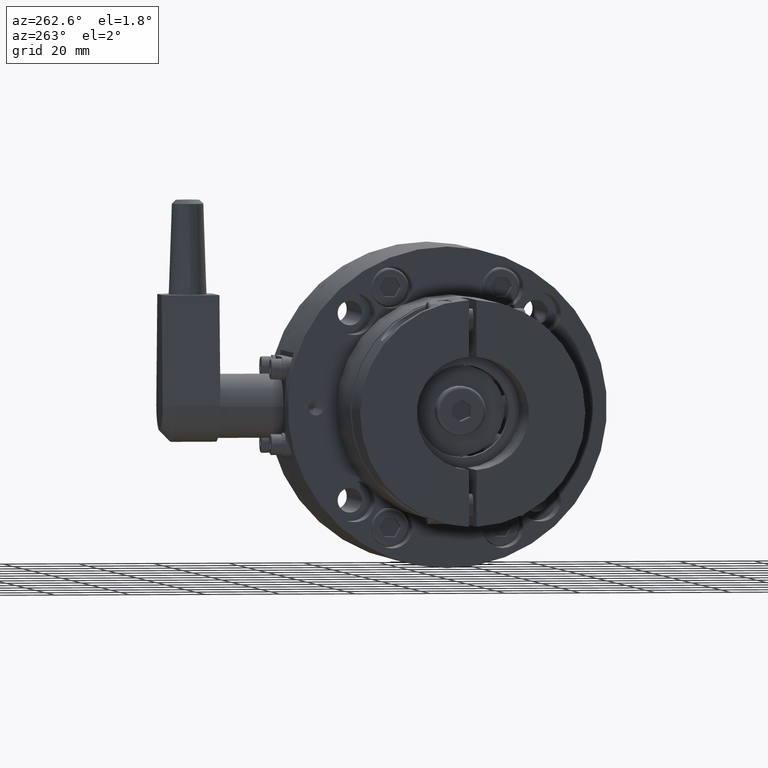
[diagram: clean part render]
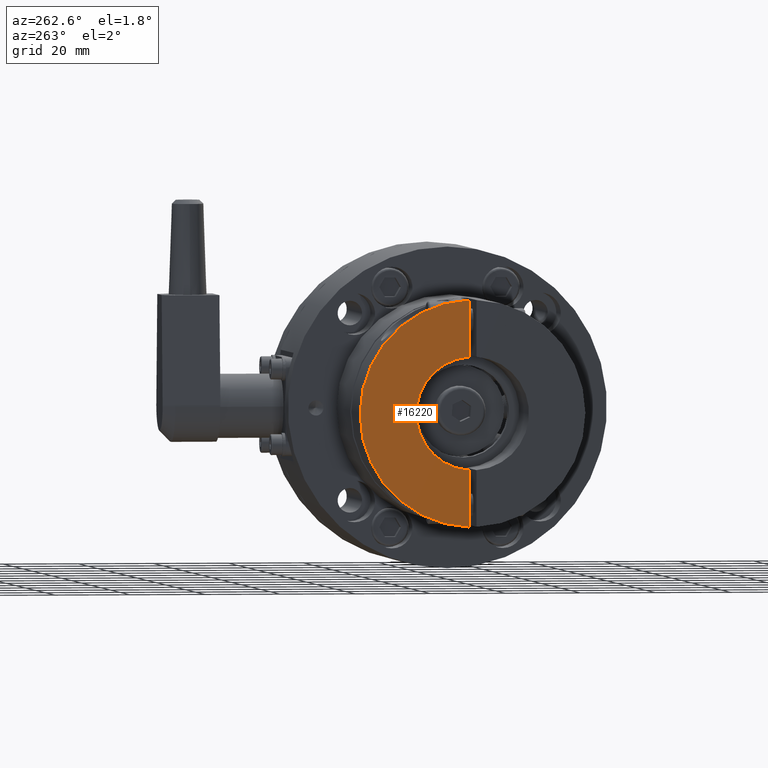
[diagram: same view with one face highlighted and labeled with its STEP entity id]
A machine part, auxiliary view. The second image highlights one B-rep face of the part: STEP entity #16220.
In plain terms, the highlighted planar face has unit normal (1, 0, 0).
Its self-contained STEP definition (entity closure, byte-faithful):
#225 = CIRCLE ( 'NONE', #12625, 30.00000000000000000 ) ;
#718 = ORIENTED_EDGE ( 'NONE', *, *, #20543, .T. ) ;
#2195 = LINE ( 'NONE', #8492, #18535 ) ;
#2792 = CARTESIAN_POINT ( 'NONE',  ( 45.00000000000000000, 1.000000000000000000, -14.96662954709576354 ) ) ;
#3164 = ORIENTED_EDGE ( 'NONE', *, *, #15681, .F. ) ;
#3740 = DIRECTION ( 'NONE',  ( -1.000000000000000000, -0.000000000000000000, -0.000000000000000000 ) ) ;
#4246 = VECTOR ( 'NONE', #4322, 1000.000000000000000 ) ;
#4322 = DIRECTION ( 'NONE',  ( -0.000000000000000000, -0.000000000000000000, 1.000000000000000000 ) ) ;
#4717 = VERTEX_POINT ( 'NONE', #19726 ) ;
#4778 = DIRECTION ( 'NONE',  ( 0.000000000000000000, 0.000000000000000000, 1.000000000000000000 ) ) ;
#5664 = CARTESIAN_POINT ( 'NONE',  ( 45.00000000000000000, 1.000000000000000444, -30.00000000000000355 ) ) ;
#5743 = VERTEX_POINT ( 'NONE', #12793 ) ;
#8492 = CARTESIAN_POINT ( 'NONE',  ( 45.00000000000000000, 1.000000000000000444, -30.00000000000000355 ) ) ;
#11182 = DIRECTION ( 'NONE',  ( -1.000000000000000000, -0.000000000000000000, -0.000000000000000000 ) ) ;
#11222 = LINE ( 'NONE', #5664, #4246 ) ;
#11778 = DIRECTION ( 'NONE',  ( -0.000000000000000000, -0.000000000000000000, 1.000000000000000000 ) ) ;
#12336 = PLANE ( 'NONE',  #16704 ) ;
#12390 = ORIENTED_EDGE ( 'NONE', *, *, #14273, .F. ) ;
#12485 = CARTESIAN_POINT ( 'NONE',  ( 45.00000000000000000, 30.00000000000000000, 0.000000000000000000 ) ) ;
#12625 = AXIS2_PLACEMENT_3D ( 'NONE', #17374, #11182, #4778 ) ;
#12793 = CARTESIAN_POINT ( 'NONE',  ( 45.00000000000000000, 1.000000000000000000, 14.96662954709576354 ) ) ;
#13218 = CARTESIAN_POINT ( 'NONE',  ( 45.00000000000000000, 0.000000000000000000, 0.000000000000000000 ) ) ;
#14273 = EDGE_CURVE ( 'NONE', #4717, #16279, #11222, .T. ) ;
#14274 = EDGE_LOOP ( 'NONE', ( #3164, #18227, #718, #12390 ) ) ;
#14621 = FACE_OUTER_BOUND ( 'NONE', #14274, .T. ) ;
#14716 = CARTESIAN_POINT ( 'NONE',  ( 45.00000000000000000, 1.000000000000000444, 29.98332870112988502 ) ) ;
#15344 = VERTEX_POINT ( 'NONE', #14716 ) ;
#15681 = EDGE_CURVE ( 'NONE', #15344, #4717, #225, .T. ) ;
#16202 = CIRCLE ( 'NONE', #19603, 15.00000000000000000 ) ;
#16220 = ADVANCED_FACE ( 'NONE', ( #14621 ), #12336, .F. ) ;
#16279 = VERTEX_POINT ( 'NONE', #2792 ) ;
#16682 = EDGE_CURVE ( 'NONE', #5743, #15344, #2195, .T. ) ;
#16704 = AXIS2_PLACEMENT_3D ( 'NONE', #12485, #20179, #18645 ) ;
#17374 = CARTESIAN_POINT ( 'NONE',  ( 45.00000000000000000, 0.000000000000000000, 0.000000000000000000 ) ) ;
#17880 = DIRECTION ( 'NONE',  ( 0.000000000000000000, 0.000000000000000000, 1.000000000000000000 ) ) ;
#18227 = ORIENTED_EDGE ( 'NONE', *, *, #16682, .F. ) ;
#18535 = VECTOR ( 'NONE', #11778, 1000.000000000000000 ) ;
#18645 = DIRECTION ( 'NONE',  ( -0.000000000000000000, 0.000000000000000000, 1.000000000000000000 ) ) ;
#19603 = AXIS2_PLACEMENT_3D ( 'NONE', #13218, #3740, #17880 ) ;
#19726 = CARTESIAN_POINT ( 'NONE',  ( 45.00000000000000000, 1.000000000000000444, -29.98332870112989568 ) ) ;
#20179 = DIRECTION ( 'NONE',  ( -1.000000000000000000, 0.000000000000000000, -0.000000000000000000 ) ) ;
#20543 = EDGE_CURVE ( 'NONE', #5743, #16279, #16202, .T. ) ;